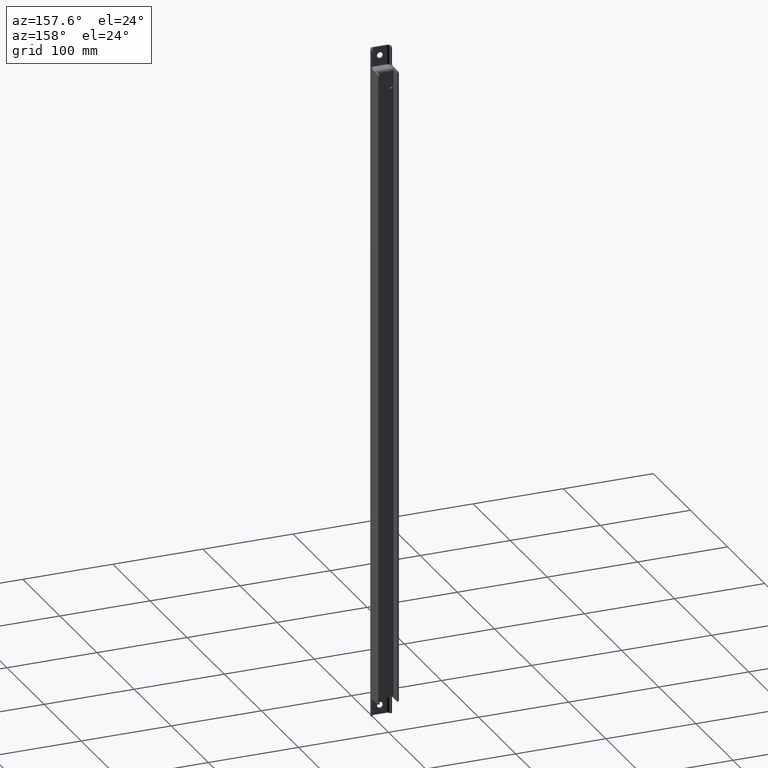
[diagram: clean part render]
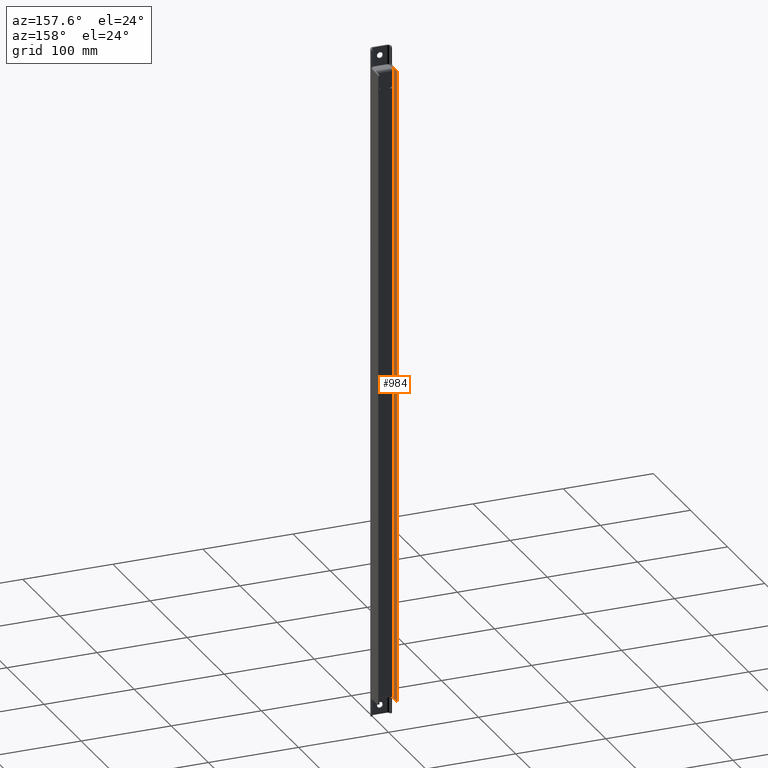
[diagram: same view with one face highlighted and labeled with its STEP entity id]
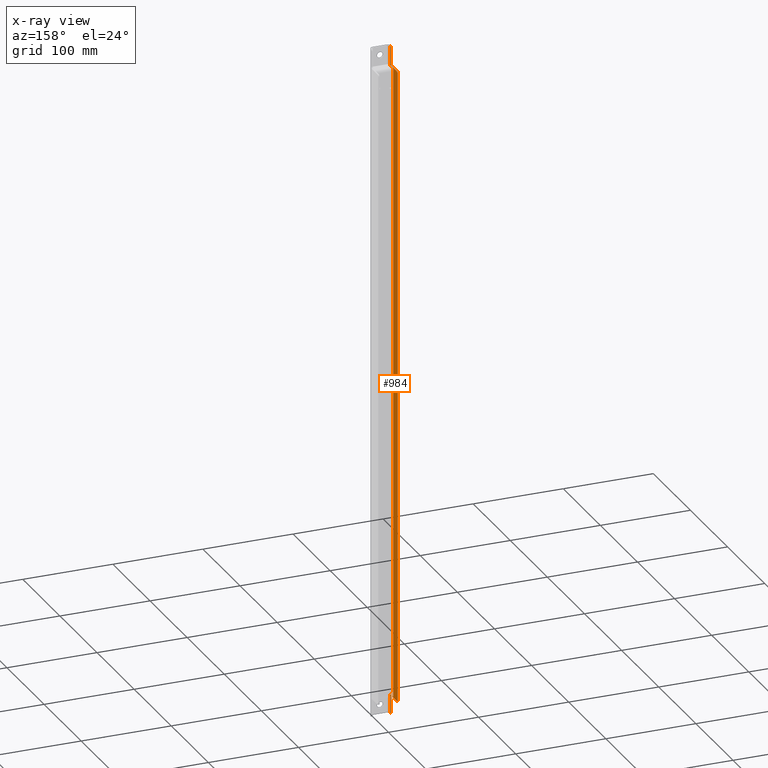
[diagram: x-ray of the same camera — body ghosted, the highlighted face saturated]
A machine part, auxiliary view. The second image highlights one B-rep face of the part: STEP entity #984.
The next image is the same camera in x-ray: the body ghosted, the highlighted face saturated — about 0% of this face is hidden behind the body in this view.
In plain terms, the highlighted planar face has unit normal (-1, -0, 0).
Its self-contained STEP definition (entity closure, byte-faithful):
#42=LINE('',#1559,#130);
#43=LINE('',#1564,#131);
#48=LINE('',#1579,#136);
#50=LINE('',#1585,#138);
#51=LINE('',#1589,#139);
#52=LINE('',#1593,#140);
#53=LINE('',#1597,#141);
#54=LINE('',#1601,#142);
#55=LINE('',#1605,#143);
#56=LINE('',#1609,#144);
#130=VECTOR('',#1230,1000.);
#131=VECTOR('',#1237,1000.);
#136=VECTOR('',#1248,1000.);
#138=VECTOR('',#1256,1000.);
#139=VECTOR('',#1259,1000.);
#140=VECTOR('',#1262,1000.);
#141=VECTOR('',#1265,1000.);
#142=VECTOR('',#1268,1000.);
#143=VECTOR('',#1271,1000.);
#144=VECTOR('',#1274,1000.);
#280=ORIENTED_EDGE('',*,*,#550,.F.);
#281=ORIENTED_EDGE('',*,*,#562,.T.);
#282=ORIENTED_EDGE('',*,*,#560,.F.);
#283=ORIENTED_EDGE('',*,*,#563,.T.);
#284=ORIENTED_EDGE('',*,*,#553,.F.);
#285=ORIENTED_EDGE('',*,*,#564,.F.);
#286=ORIENTED_EDGE('',*,*,#565,.T.);
#287=ORIENTED_EDGE('',*,*,#566,.T.);
#288=ORIENTED_EDGE('',*,*,#567,.T.);
#289=ORIENTED_EDGE('',*,*,#568,.T.);
#290=ORIENTED_EDGE('',*,*,#569,.T.);
#291=ORIENTED_EDGE('',*,*,#570,.T.);
#292=ORIENTED_EDGE('',*,*,#571,.T.);
#293=ORIENTED_EDGE('',*,*,#572,.T.);
#294=ORIENTED_EDGE('',*,*,#573,.T.);
#295=ORIENTED_EDGE('',*,*,#574,.T.);
#296=ORIENTED_EDGE('',*,*,#575,.T.);
#297=ORIENTED_EDGE('',*,*,#576,.F.);
#550=EDGE_CURVE('',#694,#695,#42,.T.);
#553=EDGE_CURVE('',#696,#697,#43,.T.);
#560=EDGE_CURVE('',#702,#703,#48,.T.);
#562=EDGE_CURVE('',#694,#703,#772,.T.);
#563=EDGE_CURVE('',#702,#697,#773,.T.);
#564=EDGE_CURVE('',#704,#696,#50,.T.);
#565=EDGE_CURVE('',#704,#705,#774,.T.);
#566=EDGE_CURVE('',#705,#706,#51,.T.);
#567=EDGE_CURVE('',#706,#707,#775,.T.);
#568=EDGE_CURVE('',#707,#708,#52,.T.);
#569=EDGE_CURVE('',#708,#709,#776,.T.);
#570=EDGE_CURVE('',#709,#710,#53,.T.);
#571=EDGE_CURVE('',#710,#711,#777,.T.);
#572=EDGE_CURVE('',#711,#712,#54,.T.);
#573=EDGE_CURVE('',#712,#713,#778,.T.);
#574=EDGE_CURVE('',#713,#714,#55,.T.);
#575=EDGE_CURVE('',#714,#715,#779,.T.);
#576=EDGE_CURVE('',#695,#715,#56,.T.);
#694=VERTEX_POINT('',#1558);
#695=VERTEX_POINT('',#1560);
#696=VERTEX_POINT('',#1565);
#697=VERTEX_POINT('',#1566);
#702=VERTEX_POINT('',#1578);
#703=VERTEX_POINT('',#1580);
#704=VERTEX_POINT('',#1586);
#705=VERTEX_POINT('',#1588);
#706=VERTEX_POINT('',#1590);
#707=VERTEX_POINT('',#1592);
#708=VERTEX_POINT('',#1594);
#709=VERTEX_POINT('',#1596);
#710=VERTEX_POINT('',#1598);
#711=VERTEX_POINT('',#1600);
#712=VERTEX_POINT('',#1602);
#713=VERTEX_POINT('',#1604);
#714=VERTEX_POINT('',#1606);
#715=VERTEX_POINT('',#1608);
#772=CIRCLE('',#1075,3.);
#773=CIRCLE('',#1076,3.);
#774=CIRCLE('',#1077,2.);
#775=CIRCLE('',#1078,2.);
#776=CIRCLE('',#1079,2.);
#777=CIRCLE('',#1080,2.);
#778=CIRCLE('',#1081,2.);
#779=CIRCLE('',#1082,2.);
#828=EDGE_LOOP('',(#280,#281,#282,#283,#284,#285,#286,#287,#288,#289,#290,
#291,#292,#293,#294,#295,#296,#297));
#896=FACE_BOUND('',#828,.T.);
#953=PLANE('',#1074);
#984=ADVANCED_FACE('',(#896),#953,.F.);
#1074=AXIS2_PLACEMENT_3D('',#1582,#1250,#1251);
#1075=AXIS2_PLACEMENT_3D('',#1583,#1252,#1253);
#1076=AXIS2_PLACEMENT_3D('',#1584,#1254,#1255);
#1077=AXIS2_PLACEMENT_3D('',#1587,#1257,#1258);
#1078=AXIS2_PLACEMENT_3D('',#1591,#1260,#1261);
#1079=AXIS2_PLACEMENT_3D('',#1595,#1263,#1264);
#1080=AXIS2_PLACEMENT_3D('',#1599,#1266,#1267);
#1081=AXIS2_PLACEMENT_3D('',#1603,#1269,#1270);
#1082=AXIS2_PLACEMENT_3D('',#1607,#1272,#1273);
#1230=DIRECTION('',(-2.40952073044229E-16,-1.,8.6117241928882E-15));
#1237=DIRECTION('',(4.06163832661068E-16,1.,1.96182842258948E-15));
#1248=DIRECTION('',(1.21257418434899E-16,3.32494788514936E-15,1.));
#1250=DIRECTION('',(-1.,-3.10099449920508E-15,3.32185076179632E-17));
#1251=DIRECTION('',(3.10099449920508E-15,-1.,-1.66533453693773E-16));
#1252=DIRECTION('',(-1.,-3.10099449920508E-15,3.32185076179632E-17));
#1253=DIRECTION('',(3.10099449920508E-15,-1.,0.));
#1254=DIRECTION('',(-1.,-3.10099449920508E-15,3.32185076179632E-17));
#1255=DIRECTION('',(3.10099449920508E-15,-1.,0.));
#1256=DIRECTION('',(3.32185076179638E-17,-1.43403807347416E-16,1.));
#1257=DIRECTION('',(1.,3.10099449920508E-15,-3.32185076179632E-17));
#1258=DIRECTION('',(3.06328311929254E-15,-1.,-1.66533453693773E-16));
#1259=DIRECTION('',(3.32185076179638E-17,-1.66533453693773E-16,1.));
#1260=DIRECTION('',(-1.,-3.10099449920508E-15,3.32185076179632E-17));
#1261=DIRECTION('',(3.06328311929254E-15,-1.,-1.66533453693773E-16));
#1262=DIRECTION('',(-3.10099449920508E-15,1.,1.66533453693773E-16));
#1263=DIRECTION('',(1.,3.10099449920508E-15,-3.32185076179632E-17));
#1264=DIRECTION('',(3.06328311929254E-15,-1.,-1.66533453693773E-16));
#1265=DIRECTION('',(3.32185076179638E-17,-1.66533453693773E-16,1.));
#1266=DIRECTION('',(1.,3.10099449920508E-15,-3.32185076179632E-17));
#1267=DIRECTION('',(3.06328311929255E-15,-1.,-1.66533453693773E-16));
#1268=DIRECTION('',(3.10099449920508E-15,-1.,-1.66533453693773E-16));
#1269=DIRECTION('',(-1.,-3.10099449920508E-15,3.32185076179632E-17));
#1270=DIRECTION('',(3.06328311929254E-15,-1.,-1.66533453693773E-16));
#1271=DIRECTION('',(3.32185076179639E-17,-4.2624633981144E-17,1.));
#1272=DIRECTION('',(1.,3.10099449920508E-15,-3.32185076179632E-17));
#1273=DIRECTION('',(3.06328311929254E-15,-1.,-1.66533453693773E-16));
#1274=DIRECTION('',(3.32185076179638E-17,-1.43403807347416E-16,1.));
#1558=CARTESIAN_POINT('',(-9.99999999999992,-13.9999999999984,353.5));
#1559=CARTESIAN_POINT('',(-9.99999999999992,-10.9999999999965,353.5));
#1560=CARTESIAN_POINT('',(-9.99999999999993,-20.5000000000001,353.5));
#1564=CARTESIAN_POINT('',(-9.99999999999999,-10.9999999999959,-353.5));
#1565=CARTESIAN_POINT('',(-9.99999999999997,-20.4999999999999,-353.5));
#1566=CARTESIAN_POINT('',(-9.99999999999999,-13.999999999999,-353.5));
#1578=CARTESIAN_POINT('',(-10.,-10.999999999999,-350.5));
#1579=CARTESIAN_POINT('',(-9.99999999999995,-10.9999999999975,350.5));
#1580=CARTESIAN_POINT('',(-9.99999999999995,-10.9999999999975,350.5));
#1582=CARTESIAN_POINT('',(-10.,-23.,-3.13726187577398E-15));
#1583=CARTESIAN_POINT('',(-9.99999999999999,-13.9999999999984,350.5));
#1584=CARTESIAN_POINT('',(-10.,-13.999999999999,-350.5));
#1585=CARTESIAN_POINT('',(-9.99999999999996,-20.4999999999999,-500.));
#1586=CARTESIAN_POINT('',(-9.99999999999999,-20.4999999999999,-375.));
#1587=CARTESIAN_POINT('',(-9.99999999999997,-20.4999999999999,-373.));
#1588=CARTESIAN_POINT('',(-9.99999999999998,-18.4999999999999,-373.));
#1589=CARTESIAN_POINT('',(-10.,-18.5,0.));
#1590=CARTESIAN_POINT('',(-10.,-18.4999999999999,-356.));
#1591=CARTESIAN_POINT('',(-9.99999999999998,-16.4999999999999,-356.));
#1592=CARTESIAN_POINT('',(-9.99999999999998,-16.4999999999999,-354.));
#1593=CARTESIAN_POINT('',(-9.99999999999996,-23.,-354.));
#1594=CARTESIAN_POINT('',(-10.0000000000002,-1.99999999999994,-354.));
#1595=CARTESIAN_POINT('',(-10.0000000000002,-1.99999999999994,-352.));
#1596=CARTESIAN_POINT('',(-10.0000000000002,6.24500451351651E-14,-352.));
#1597=CARTESIAN_POINT('',(-10.0000000000003,3.46944695195361E-15,6.9300755918279E-16));
#1598=CARTESIAN_POINT('',(-10.0000000000003,-5.51503287482545E-14,352.));
#1599=CARTESIAN_POINT('',(-10.0000000000002,-2.00000000000005,352.));
#1600=CARTESIAN_POINT('',(-10.0000000000002,-2.00000000000005,354.));
#1601=CARTESIAN_POINT('',(-9.99999999999995,-23.0000000000001,354.));
#1602=CARTESIAN_POINT('',(-9.99999999999998,-16.5000000000001,354.));
#1603=CARTESIAN_POINT('',(-9.99999999999998,-16.5000000000001,356.));
#1604=CARTESIAN_POINT('',(-9.99999999999997,-18.5000000000001,356.));
#1605=CARTESIAN_POINT('',(-10.,-18.5,0.));
#1606=CARTESIAN_POINT('',(-9.99999999999997,-18.5000000000001,373.));
#1607=CARTESIAN_POINT('',(-9.99999999999996,-20.5000000000001,373.));
#1608=CARTESIAN_POINT('',(-9.99999999999994,-20.5000000000001,375.));
#1609=CARTESIAN_POINT('',(-9.99999999999999,-20.5,-250.));